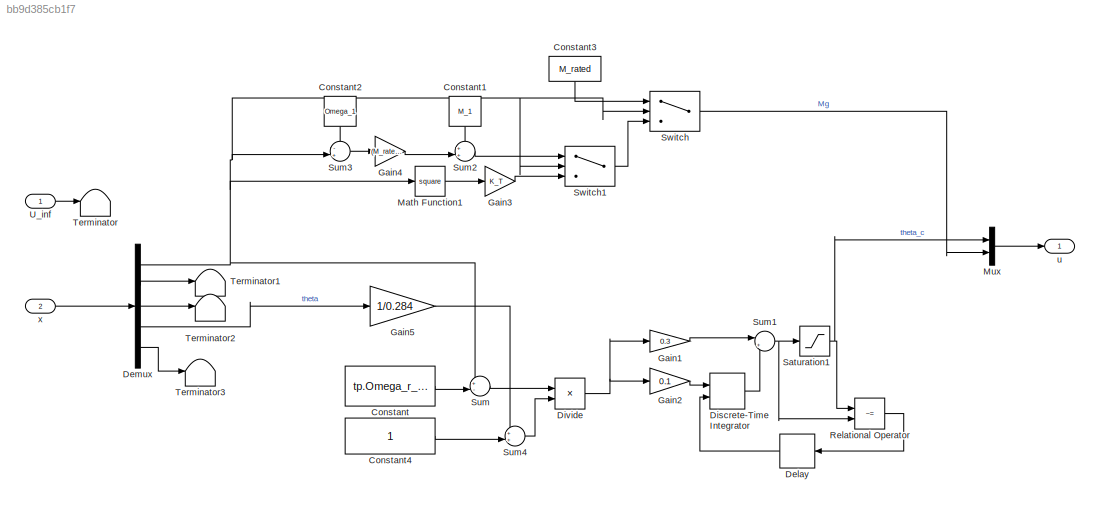
MODEL slx_bb9d385cb1f7
KIND model
CONFIG AbsTol = auto
CONFIG EnableMultiTasking = on
CONFIG FixedStep = DT
CONFIG MaxStep = auto
CONFIG MinStep = auto
CONFIG RelTol = 1e-3
CONFIG SampleTimeConstraint = Unconstrained
CONFIG SolverName = FixedStepAuto
CONFIG StartTime = 0.0
CONFIG StopTime = 10.0
BLOCK [Constant] Constant
  Value = tp.Omega_r_rated
BLOCK [Constant] Constant1
  NameLocation = left
  Value = M_1
BLOCK [Constant] Constant2
  NameLocation = left
  Value = Omega_1
BLOCK [Constant] Constant3
  NameLocation = left
  Value = M_rated
BLOCK [Constant] Constant4
BLOCK [Delay] Delay
  DelayLength = 1
  InputPortMap = u0
  Ports = [1, 1]
BLOCK [Demux] Demux
  Outputs = 5
  Ports = [1, 5]
BLOCK [DiscreteIntegrator] Discrete-Time Integrator
  ExternalReset = level
  ICPrevOutput = DiscIntNeverNeededParam
  ICPrevScaledInput = DiscIntNeverNeededParam
  InitialConditionSetting = Auto
  Ports = [2, 1]
  SampleTime = T_s
BLOCK [Product] Divide
  Inputs = */
  Ports = [2, 1]
BLOCK [Gain] Gain1
  Gain = 0.3
BLOCK [Gain] Gain2
  Gain = 0.1
BLOCK [Gain] Gain3
  Gain = K_T
BLOCK [Gain] Gain4
  Gain = (M_rated-M_1)/(Omega_2-Omega_1)
BLOCK [Gain] Gain5
  Gain = 1/0.284
BLOCK [Math] Math Function1
  Operator = square
  Ports = [1, 1]
BLOCK [Mux] Mux
  DisplayOption = bar
  Inputs = 2
  Ports = [2, 1]
BLOCK [RelationalOperator] Relational Operator
  InputSameDT = off
  Operator = ~=
  OutDataTypeStr = boolean
  Ports = [2, 1]
  RndMeth = Simplest
BLOCK [Saturate] Saturation1
  LowerLimit = 0
  UpperLimit = inf
BLOCK [Sum] Sum
  Inputs = +-|
  Ports = [2, 1]
BLOCK [Sum] Sum1
  Inputs = |++
  Ports = [2, 1]
BLOCK [Sum] Sum2
  Inputs = ++|
  Ports = [2, 1]
BLOCK [Sum] Sum3
  Inputs = -+|
  Ports = [2, 1]
BLOCK [Sum] Sum4
  Inputs = ++|
  Ports = [2, 1]
BLOCK [Switch] Switch
  Criteria = u2 > Threshold
  InputSameDT = off
  SaturateOnIntegerOverflow = off
  Threshold = Omega_2
BLOCK [Switch] Switch1
  Criteria = u2 > Threshold
  InputSameDT = off
  SaturateOnIntegerOverflow = off
  Threshold = Omega_1
BLOCK [Terminator] Terminator
BLOCK [Terminator] Terminator1
BLOCK [Terminator] Terminator2
BLOCK [Terminator] Terminator3
BLOCK [Inport] U_inf
  SampleTime = T_s
BLOCK [Outport] u
  SampleTime = T_s
BLOCK [Inport] x
  Port = 2
LINE Constant1:1 -> Sum2:1
LINE Constant2:1 -> Sum3:1
LINE Constant3:1 -> Switch:1
LINE Constant4:1 -> Sum4:2
LINE Constant:1 -> Sum:2
LINE Delay:1 -> Discrete-Time Integrator:2
NET Demux:1 -> Math Function1:1, Sum3:2, Sum:1, Switch1:2, Switch:2
LINE Demux:2 -> Terminator1:1
LINE Demux:3 -> Terminator2:1
LINE Demux:4 -> Gain5:1
LINE Demux:5 -> Terminator3:1
LINE Discrete-Time Integrator:1 -> Sum1:2
NET Divide:1 -> Gain1:1, Gain2:1
LINE Gain1:1 -> Sum1:1
LINE Gain2:1 -> Discrete-Time Integrator:1
LINE Gain3:1 -> Switch1:3
LINE Gain4:1 -> Sum2:2
LINE Gain5:1 -> Sum4:1
LINE Math Function1:1 -> Gain3:1
LINE Mux:1 -> u:1
LINE Relational Operator:1 -> Delay:1
NET Saturation1:1 -> Mux:1, Relational Operator:1
NET Sum1:1 -> Relational Operator:2, Saturation1:1
LINE Sum2:1 -> Switch1:1
LINE Sum3:1 -> Gain4:1
LINE Sum4:1 -> Divide:2
LINE Sum:1 -> Divide:1
LINE Switch1:1 -> Switch:3
LINE Switch:1 -> Mux:2
LINE U_inf:1 -> Terminator:1
LINE x:1 -> Demux:1
note: NET lines group one-source signal fan-out (src -> all destinations, sorted); 1:1 wires keep LINE
